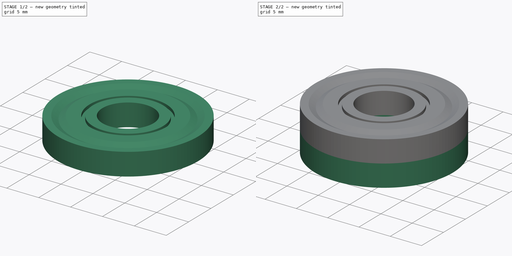
[diagram: build sequence overview — one tinted view per stage of 2, left to right]
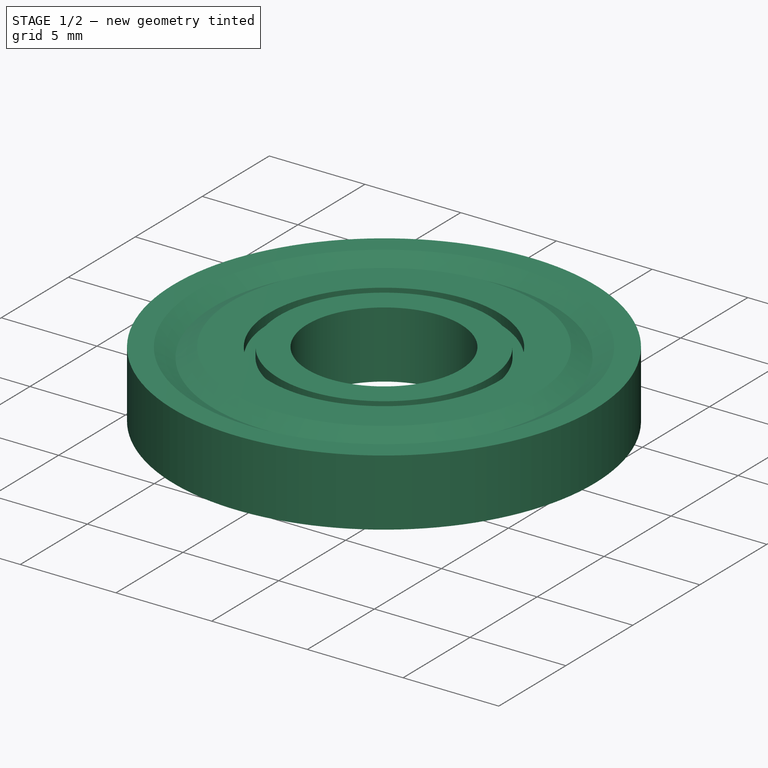
[diagram: stage 1 of 2 — iso view after this stage's code; geometry added in this stage tinted green]
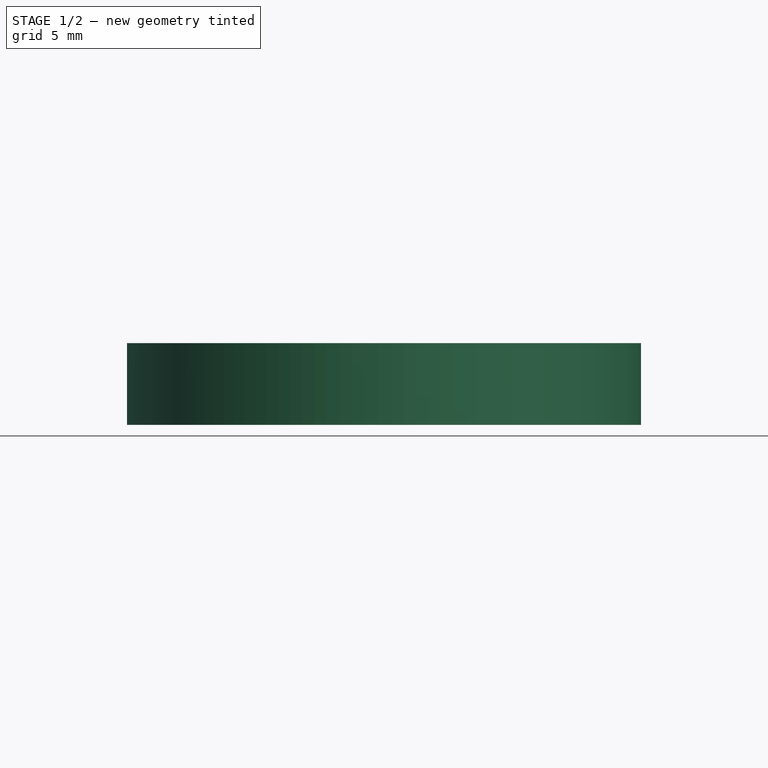
[diagram: stage 1 of 2 — front view after this stage's code; geometry added in this stage tinted green]
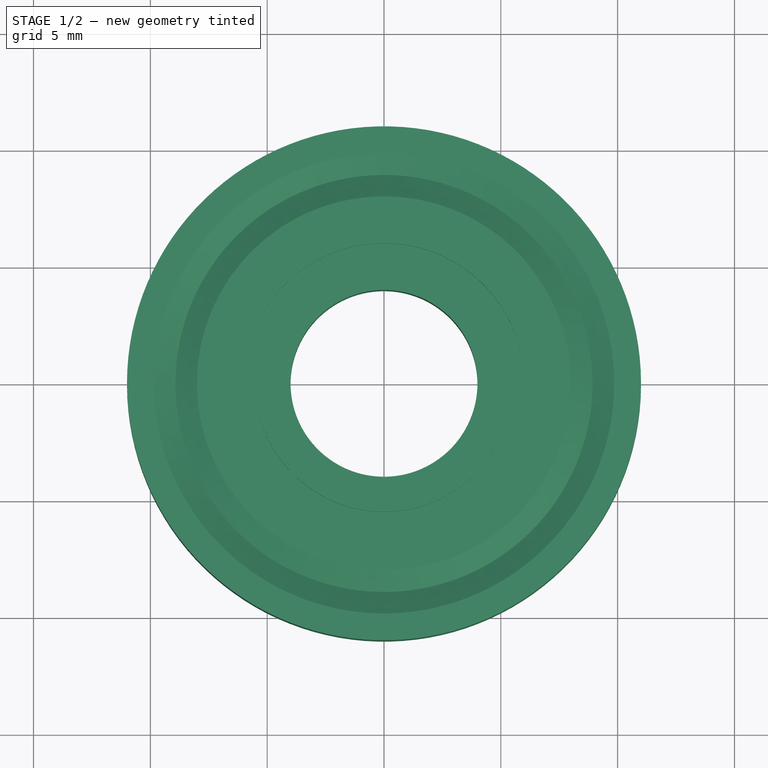
[diagram: stage 1 of 2 — top view after this stage's code; geometry added in this stage tinted green]
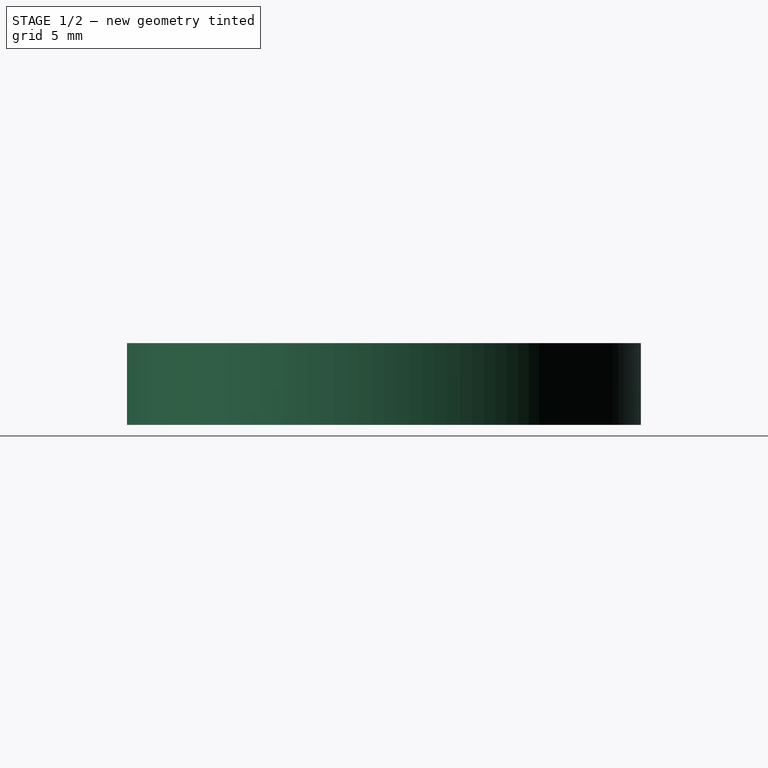
[diagram: stage 1 of 2 — right view after this stage's code; geometry added in this stage tinted green]
FCSTD DOCUMENT  (FreeCAD 0.21R38947 (Git))
Label: 608-zz-bearing
License: All rights reserved
LicenseURL: https://en.wikipedia.org/wiki/All_rights_reserved
objects: Sketcher::SketchObject×1, PartDesign::Revolution×1, PartDesign::Mirrored×1, PartDesign::Body×1
note: 9 computed .brp shape members not serialized (recipe doc carries the construction recipe); baked Part::Feature solids carry a one-line shape summary decoded from their .brp

FEATURE [Sketcher::SketchObject] Sketch
  ArcFitTolerance = 1e-06
  AttachmentSupport = -> [XZ_Plane]
  ExternalBSplineMaxDegree = 5
  ExternalBSplineTolerance = 0.0001
  FixShape = 1
  FullyConstrained = true
  InternalTolerance = 1e-06
  InvalidShape = false
  MakeInternals = false
  MapMode = 5
  Placement = pos=(0,0,0) rot=(1,0,0;1.5708rad)
  Support = -> [XZ_Plane]
  TreeRank = 11
  ValidateShape = false
  sketch-geometry (14):
    g0: LineSegment StartX=4 StartY=0 StartZ=0 EndX=4 EndY=3.5 EndZ=0
    g1: LineSegment StartX=4 StartY=3.5 StartZ=0 EndX=5.5 EndY=3.5 EndZ=0
    g2: LineSegment StartX=5.5 StartY=3.5 StartZ=0 EndX=5.5 EndY=3 EndZ=0
    g3: LineSegment StartX=5.5 StartY=3 StartZ=0 EndX=6 EndY=3 EndZ=0
    g4: LineSegment StartX=6 StartY=3 StartZ=0 EndX=6 EndY=3.5 EndZ=0
    g5: LineSegment StartX=6 StartY=3.5 StartZ=0 EndX=8 EndY=3.5 EndZ=0
    g6: LineSegment StartX=8 StartY=3.5 StartZ=0 EndX=8.925 EndY=3 EndZ=0
    g7: LineSegment StartX=8.925 StartY=3 StartZ=0 EndX=9.85 EndY=3.5 EndZ=0
    g8: LineSegment StartX=9.85 StartY=3.5 StartZ=0 EndX=11 EndY=3.5 EndZ=0
    g9: LineSegment StartX=11 StartY=3.5 StartZ=0 EndX=11 EndY=0 EndZ=0
    g10: LineSegment StartX=11 StartY=0 StartZ=0 EndX=4 EndY=0 EndZ=0
    g11: LineSegment [constr] StartX=8 StartY=3.5 StartZ=0 EndX=9.85 EndY=3.5 EndZ=0
    g12: LineSegment [constr] StartX=5.5 StartY=3.5 StartZ=0 EndX=6 EndY=3.5 EndZ=0
    g13: LineSegment [constr] StartX=8.925 StartY=3 StartZ=0 EndX=8.925 EndY=3.5 EndZ=0
  constraints (40):
    c: PointOnObject(g0,g-1)
    c: Vertical(g0)
    c: Coincident(g1,g0)
    c: Horizontal(g1)
    c: Coincident(g2,g1)
    c: Vertical(g2)
    c: Coincident(g3,g2)
    c: Horizontal(g3)
    c: Coincident(g4,g3)
    c: Coincident(g5,g4)
    c: Horizontal(g5)
    c: Coincident(g6,g5)
    c: Coincident(g7,g6)
    c: Coincident(g8,g7)
    c: Horizontal(g8)
    c: Coincident(g9,g8)
    c: PointOnObject(g9,g-1)
    c: Vertical(g9)
    c: Coincident(g10,g9)
    c: Coincident(g10,g0)
    c: Coincident(g11,g5)
    c: Coincident(g11,g7)
    c: Coincident(g12,g1)
    c: Coincident(g12,g4)
    c: Horizontal(g12)
    c: Horizontal(g11)
    c: Vertical(g4)
    c: DistanceX(g-1,g0) = 4
    c: DistanceY(g9,g9) = 3.5
    c: DistanceX(g-1,g9) = 11
    c: DistanceX(g8,g8) = 1.15
    c: DistanceX(g0,g5) = 4
    c: Coincident(g13,g6)
    c: PointOnObject(g13,g11)
    c: Vertical(g13)
    c: DistanceX(g1,g1) = 1.5
    c: Equal(g7,g6)
    c: DistanceY(g13,g13) = 0.5
    c: DistanceX(g12,g12) = 0.5
    c: Equal(g12,g4)
FEATURE [PartDesign::Revolution] Revolution
  AddSubType = 0
  Angle = 360
  Axis = (0,2e-16,1)
  Base = (0,0,0)
  ClaimChildren = false
  Fit = 0
  FitJoin = 0
  FixShape = 1
  InnerFit = 0
  InnerFitJoin = 0
  InvalidShape = false
  Linearize = true
  NewSolid = false
  Profile = -> Sketch
  ReferenceAxis = -> Sketch [V_Axis]
  Reversed = true
  Suppress = false
  TreeRank = 12
  ValidateShape = false
  _ProfileBasedVersion = 1
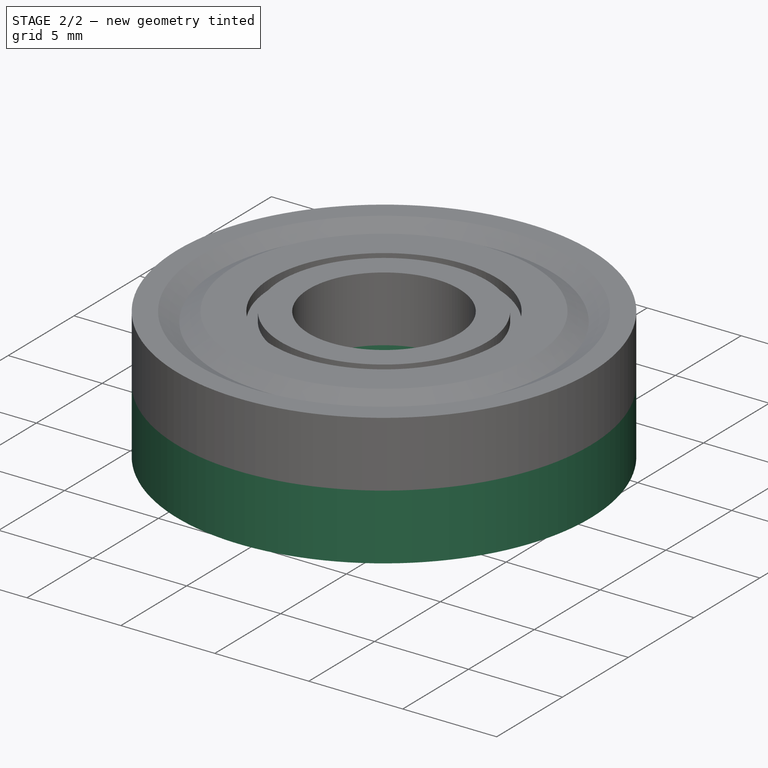
[diagram: stage 2 of 2 — iso view after this stage's code; geometry added in this stage tinted green]
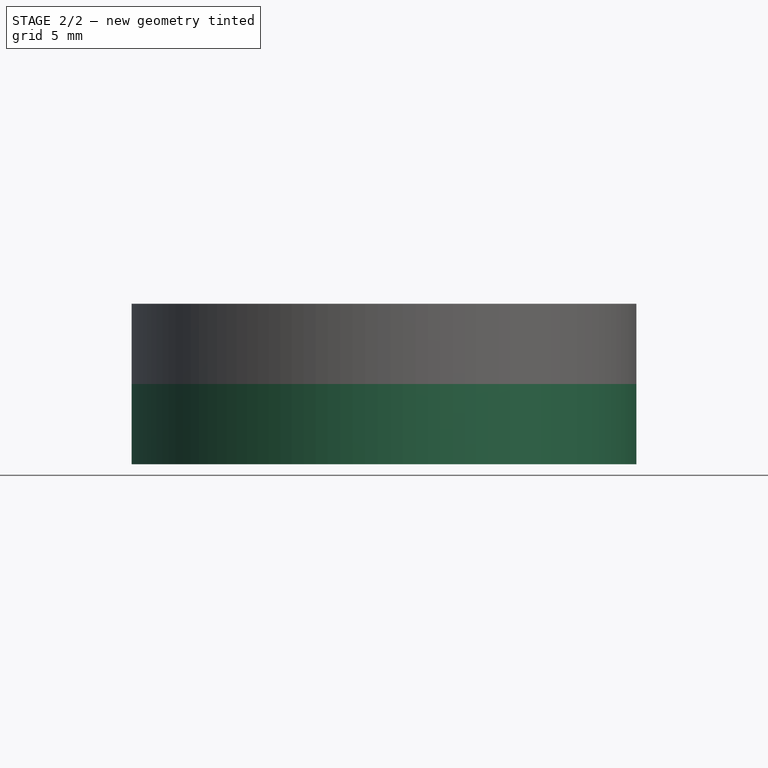
[diagram: stage 2 of 2 — front view after this stage's code; geometry added in this stage tinted green]
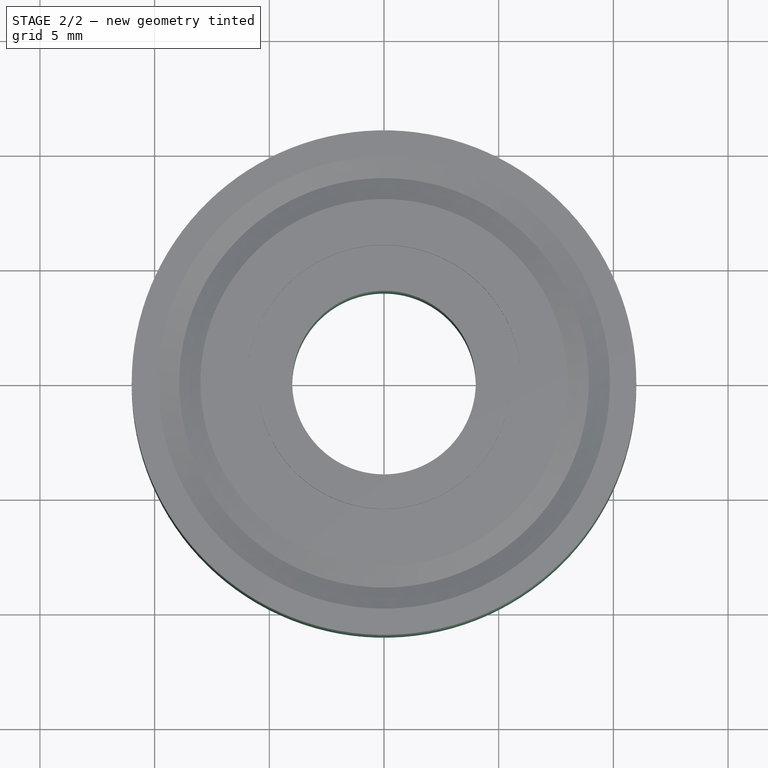
[diagram: stage 2 of 2 — top view after this stage's code; geometry added in this stage tinted green]
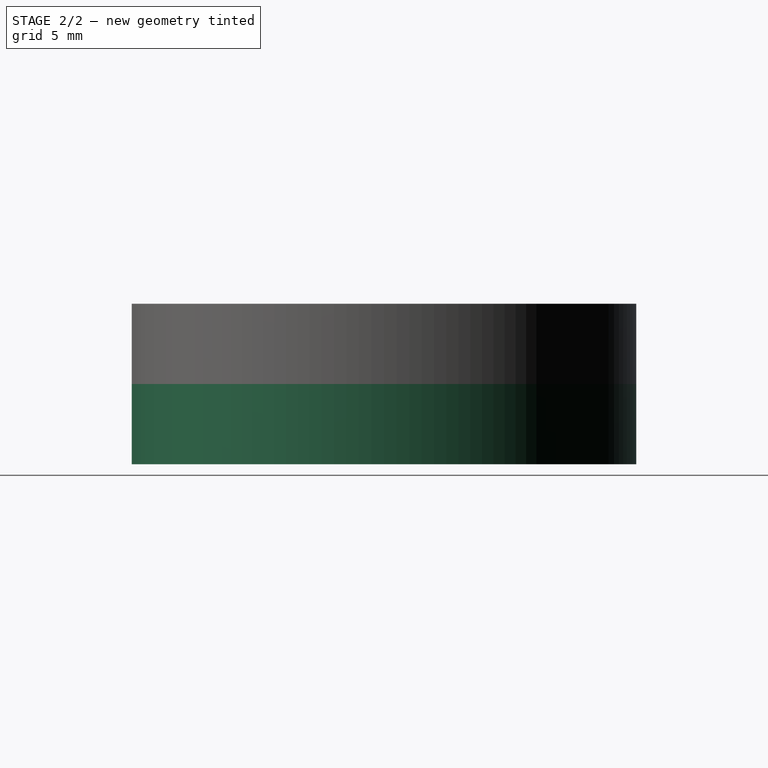
[diagram: stage 2 of 2 — right view after this stage's code; geometry added in this stage tinted green]
FEATURE [PartDesign::Mirrored] Mirrored
  AddSubType = 0
  BaseFeature = -> Revolution
  CopyShape = false
  FixShape = 1
  InvalidShape = false
  MirrorPlane = -> XY_Plane
  NewSolid = false
  OriginalSubs = -> [Revolution]
  Originals = -> [Revolution]
  ParallelTransform = true
  SubTransform = true
  Suppress = false
  TreeRank = 13
  ValidateShape = false
  _Version = 3
FEATURE [PartDesign::Body] Body  label="608-zz-bearing"
  AutoGroupSolids = false
  ClaimAllChildren = false
  ExportMode = 0
  FixShape = 1
  Group = -> [Sketch,Revolution,Mirrored]
  InvalidShape = false
  Origin = -> Origin
  Tip = -> Mirrored
  TreeRank = 10
  ValidateShape = false
  _ExportChildren = -> [Revolution,Mirrored]
  _GroupVersion = 1
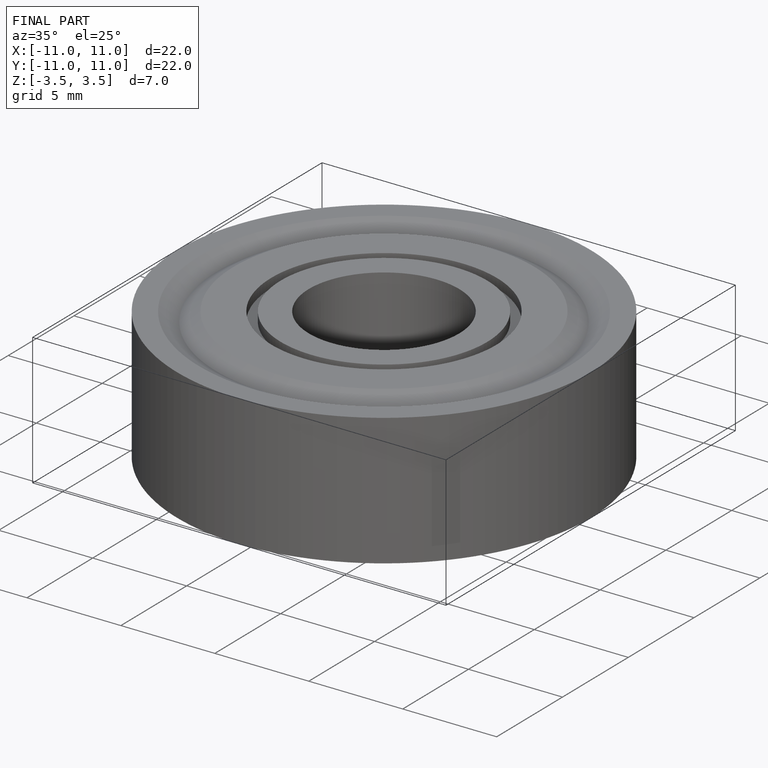
[diagram: finished part — iso view with bounding-box wireframe]
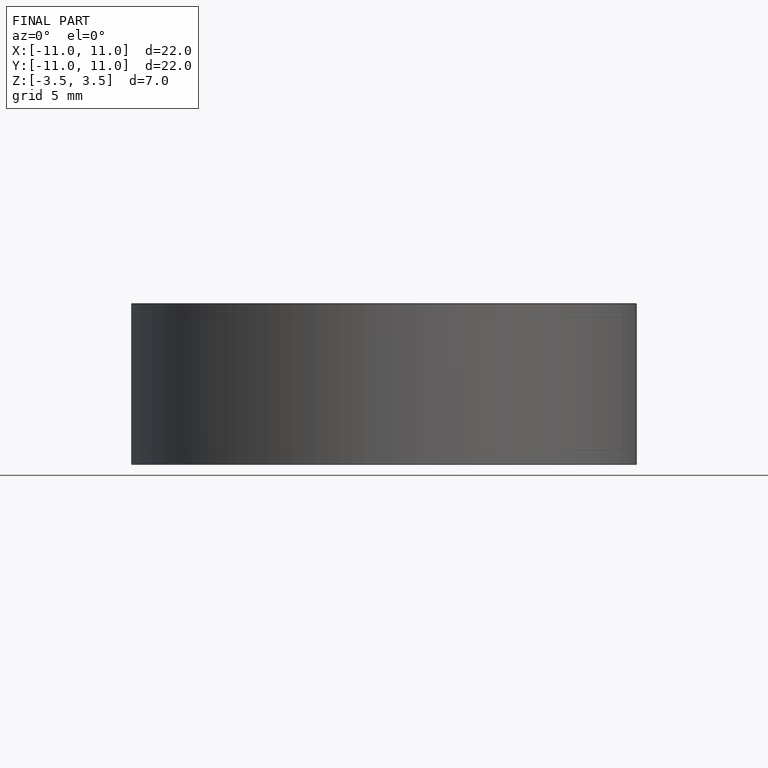
[diagram: finished part — front view with bounding-box wireframe]
